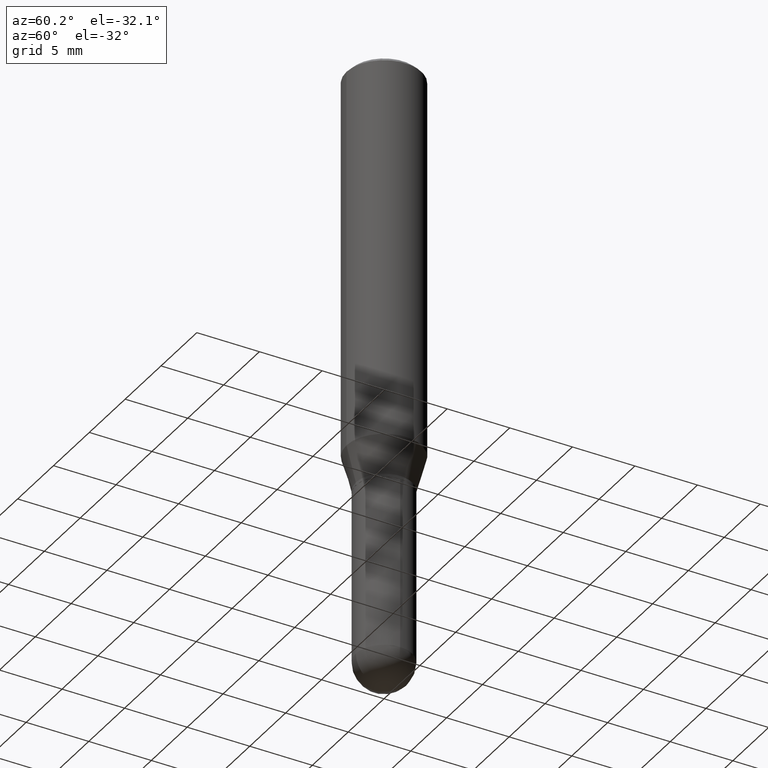
[diagram: clean part render]
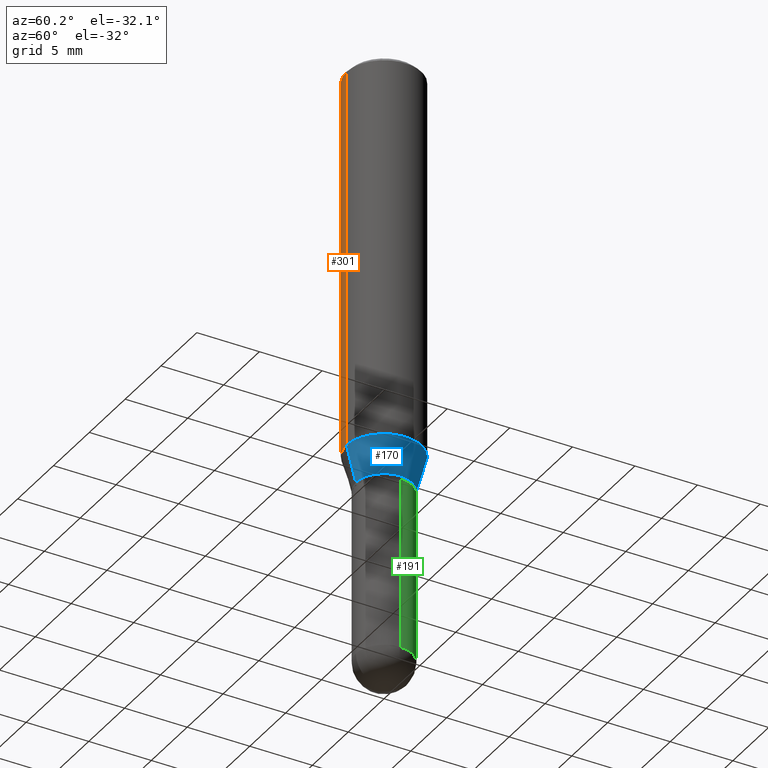
[diagram: same view with three faces highlighted in distinct colors, each labeled with its STEP entity id]
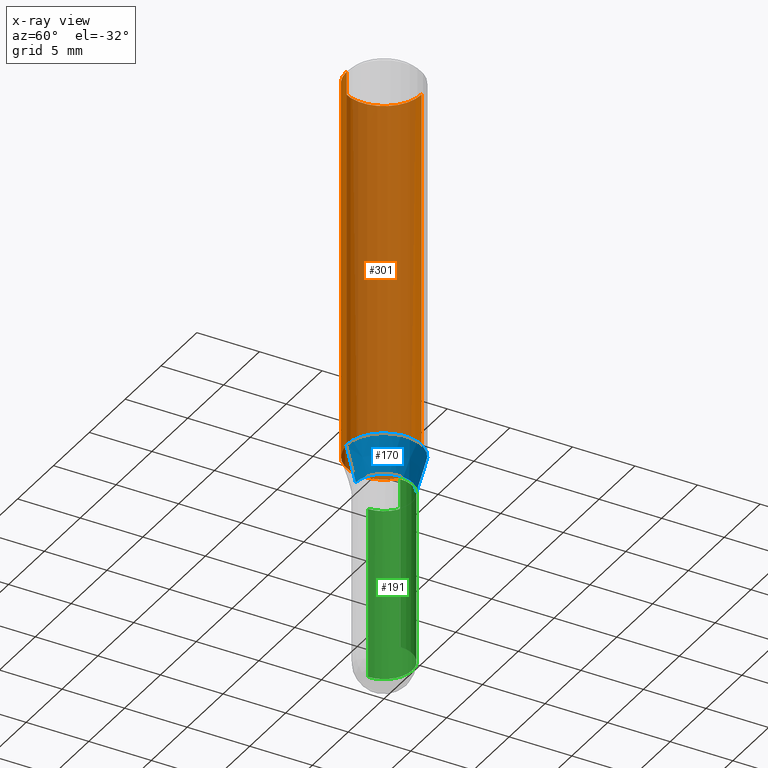
[diagram: x-ray of the same camera — body ghosted, the three highlighted faces saturated]
A machine part, auxiliary view with three faces highlighted in distinct colors.
The next image is the same camera in x-ray (body ghosted, the three faces saturated) — at least one of them is partly hidden behind the body in this view.
Their STEP definitions:

[orange] entity #301 — the highlighted cylindrical surface (partial cylindrical patch) has radius 2.9997 mm, axis along (-0, 0, 1).
#3 = CYLINDRICAL_SURFACE ( 'NONE', #398, 0.1180999999999999966 ) ;
#6 = ORIENTED_EDGE ( 'NONE', *, *, #57, .F. ) ;
#13 = CARTESIAN_POINT ( 'NONE',  ( 8.391509709326781971E-16, 0.1180999999999999966, -4.123265039032293037E-16 ) ) ;
#17 = CARTESIAN_POINT ( 'NONE',  ( 8.391509709327078780E-16, 0.1180999999999957362, -1.218504501176719046 ) ) ;
#35 = DIRECTION ( 'NONE',  ( -2.445571937709606698E-29, 3.491333648630222721E-15, 1.000000000000000000 ) ) ;
#36 = CARTESIAN_POINT ( 'NONE',  ( -8.246878922347182859E-16, -0.1181000000000042710, -1.218504501176718158 ) ) ;
#43 = DIRECTION ( 'NONE',  ( -2.445571937709606698E-29, 3.491333648630222721E-15, 1.000000000000000000 ) ) ;
#46 = CIRCLE ( 'NONE', #464, 0.1180999999999999966 ) ;
#57 = EDGE_CURVE ( 'NONE', #445, #452, #66, .T. ) ;
#66 = LINE ( 'NONE', #13, #79 ) ;
#77 = CARTESIAN_POINT ( 'NONE',  ( -8.246878922347475723E-16, -0.1181000000000000522, -0.01499999999999965944 ) ) ;
#79 = VECTOR ( 'NONE', #415, 39.37007874015748143 ) ;
#99 = ORIENTED_EDGE ( 'NONE', *, *, #153, .F. ) ;
#120 = VECTOR ( 'NONE', #433, 39.37007874015748143 ) ;
#141 = EDGE_LOOP ( 'NONE', ( #6, #285, #248, #99 ) ) ;
#153 = EDGE_CURVE ( 'NONE', #452, #292, #193, .T. ) ;
#155 = AXIS2_PLACEMENT_3D ( 'NONE', #421, #35, #310 ) ;
#160 = LINE ( 'NONE', #510, #120 ) ;
#166 = DIRECTION ( 'NONE',  ( -6.982962677686265922E-15, -1.000000000000000000, 3.491333648630222721E-15 ) ) ;
#193 = CIRCLE ( 'NONE', #155, 0.1180999999999999966 ) ;
#199 = DIRECTION ( 'NONE',  ( -2.445571937709606698E-29, 3.491333648630222721E-15, 1.000000000000000000 ) ) ;
#205 = DIRECTION ( 'NONE',  ( -6.982962677686265922E-15, -1.000000000000000000, 3.469747663417777397E-15 ) ) ;
#209 = CARTESIAN_POINT ( 'NONE',  ( 2.979940414050625783E-29, -4.254205765965662908E-15, -1.218504501176718602 ) ) ;
#234 = EDGE_CURVE ( 'NONE', #445, #364, #46, .T. ) ;
#248 = ORIENTED_EDGE ( 'NONE', *, *, #335, .T. ) ;
#285 = ORIENTED_EDGE ( 'NONE', *, *, #234, .T. ) ;
#292 = VERTEX_POINT ( 'NONE', #77 ) ;
#301 = ADVANCED_FACE ( 'NONE', ( #469 ), #3, .T. ) ;
#310 = DIRECTION ( 'NONE',  ( -6.982962677686265922E-15, -1.000000000000000000, 3.487819265831411744E-15 ) ) ;
#335 = EDGE_CURVE ( 'NONE', #364, #292, #160, .T. ) ;
#364 = VERTEX_POINT ( 'NONE', #36 ) ;
#392 = CARTESIAN_POINT ( 'NONE',  ( 0.000000000000000000, 0.000000000000000000, 0.000000000000000000 ) ) ;
#398 = AXIS2_PLACEMENT_3D ( 'NONE', #392, #43, #166 ) ;
#414 = CARTESIAN_POINT ( 'NONE',  ( 8.391509709327082724E-16, 0.1180999999999999411, -0.01500000000000048170 ) ) ;
#415 = DIRECTION ( 'NONE',  ( -2.445571937709606698E-29, 3.491333648630222721E-15, 1.000000000000000000 ) ) ;
#421 = CARTESIAN_POINT ( 'NONE',  ( 3.668357906564427545E-31, -5.237000472945358290E-17, -0.01500000000000007057 ) ) ;
#433 = DIRECTION ( 'NONE',  ( -2.445571937709606698E-29, 3.491333648630222721E-15, 1.000000000000000000 ) ) ;
#445 = VERTEX_POINT ( 'NONE', #17 ) ;
#452 = VERTEX_POINT ( 'NONE', #414 ) ;
#464 = AXIS2_PLACEMENT_3D ( 'NONE', #209, #199, #205 ) ;
#469 = FACE_OUTER_BOUND ( 'NONE', #141, .T. ) ;
#510 = CARTESIAN_POINT ( 'NONE',  ( -8.246878922347479668E-16, -0.1180999999999999966, 4.123265039032293037E-16 ) ) ;

[blue] entity #170 — the highlighted conical surface has half-angle 15 deg.
#7 = EDGE_CURVE ( 'NONE', #330, #364, #332, .T. ) ;
#10 = VECTOR ( 'NONE', #491, 39.37007874015748854 ) ;
#17 = CARTESIAN_POINT ( 'NONE',  ( 8.391509709327078780E-16, 0.1180999999999957362, -1.218504501176719046 ) ) ;
#29 = EDGE_CURVE ( 'NONE', #330, #218, #318, .T. ) ;
#36 = CARTESIAN_POINT ( 'NONE',  ( -8.246878922347182859E-16, -0.1181000000000042710, -1.218504501176718158 ) ) ;
#48 = LINE ( 'NONE', #315, #457 ) ;
#49 = EDGE_LOOP ( 'NONE', ( #184, #142, #252, #251 ) ) ;
#54 = AXIS2_PLACEMENT_3D ( 'NONE', #461, #306, #156 ) ;
#78 = DIRECTION ( 'NONE',  ( -6.982962677686265922E-15, -1.000000000000000000, 3.469747663417777397E-15 ) ) ;
#109 = FACE_OUTER_BOUND ( 'NONE', #49, .T. ) ;
#142 = ORIENTED_EDGE ( 'NONE', *, *, #411, .T. ) ;
#156 = DIRECTION ( 'NONE',  ( -6.982962677686264344E-15, -1.000000000000000000, 3.083349879982241481E-15 ) ) ;
#162 = CARTESIAN_POINT ( 'NONE',  ( 2.979940414050625783E-29, -4.254205765965662908E-15, -1.218504501176718602 ) ) ;
#168 = CARTESIAN_POINT ( 'NONE',  ( -6.186904932429700179E-16, -0.08860000000000455012, -1.328599999999999781 ) ) ;
#170 = ADVANCED_FACE ( 'NONE', ( #109 ), #369, .T. ) ;
#180 = DIRECTION ( 'NONE',  ( 1.839019923739605837E-15, 0.2588190451025257355, 0.9659258262890669799 ) ) ;
#184 = ORIENTED_EDGE ( 'NONE', *, *, #29, .T. ) ;
#198 = AXIS2_PLACEMENT_3D ( 'NONE', #419, #372, #446 ) ;
#218 = VERTEX_POINT ( 'NONE', #384 ) ;
#251 = ORIENTED_EDGE ( 'NONE', *, *, #7, .F. ) ;
#252 = ORIENTED_EDGE ( 'NONE', *, *, #286, .F. ) ;
#286 = EDGE_CURVE ( 'NONE', #364, #445, #428, .T. ) ;
#290 = CARTESIAN_POINT ( 'NONE',  ( -6.186904932429700179E-16, -0.08860000000000455012, -1.328599999999999781 ) ) ;
#306 = DIRECTION ( 'NONE',  ( -2.445571937709606698E-29, 3.491333648630222721E-15, 1.000000000000000000 ) ) ;
#315 = CARTESIAN_POINT ( 'NONE',  ( 6.295408638834805036E-16, 0.08859999999999526588, -1.328600000000000447 ) ) ;
#318 = CIRCLE ( 'NONE', #198, 0.08859999999999991493 ) ;
#330 = VERTEX_POINT ( 'NONE', #168 ) ;
#332 = LINE ( 'NONE', #290, #10 ) ;
#358 = DIRECTION ( 'NONE',  ( -2.445571937709606698E-29, 3.491333648630222721E-15, 1.000000000000000000 ) ) ;
#364 = VERTEX_POINT ( 'NONE', #36 ) ;
#369 = CONICAL_SURFACE ( 'NONE', #54, 0.08859999999999991493, 0.2617993877991510732 ) ;
#372 = DIRECTION ( 'NONE',  ( -2.445571937709606698E-29, 3.491333648630222721E-15, 1.000000000000000000 ) ) ;
#384 = CARTESIAN_POINT ( 'NONE',  ( 7.343459174080941908E-16, 0.08859999999999526588, -1.328600000000000447 ) ) ;
#411 = EDGE_CURVE ( 'NONE', #218, #445, #48, .T. ) ;
#419 = CARTESIAN_POINT ( 'NONE',  ( 3.249186876440983461E-29, -4.638585885570114762E-15, -1.328600000000000225 ) ) ;
#428 = CIRCLE ( 'NONE', #480, 0.1180999999999999966 ) ;
#445 = VERTEX_POINT ( 'NONE', #17 ) ;
#446 = DIRECTION ( 'NONE',  ( -6.982962677686264344E-15, -1.000000000000000000, 3.083349879982241481E-15 ) ) ;
#457 = VECTOR ( 'NONE', #180, 39.37007874015748143 ) ;
#461 = CARTESIAN_POINT ( 'NONE',  ( 3.249186876440983461E-29, -4.638585885570114762E-15, -1.328600000000000225 ) ) ;
#480 = AXIS2_PLACEMENT_3D ( 'NONE', #162, #358, #78 ) ;
#491 = DIRECTION ( 'NONE',  ( -1.807323732225335661E-15, -0.2588190451025189631, 0.9659258262890687563 ) ) ;

[green] entity #191 — the highlighted cylindrical surface (edge-blend (fillet) strip) has radius 2.2504 mm, axis along (-0, 0, 1).
#39 = CARTESIAN_POINT ( 'NONE',  ( 3.273504543959423913E-29, -4.673696920175434737E-15, -1.338600000000000012 ) ) ;
#76 = DIRECTION ( 'NONE',  ( -2.445468806185136597E-29, 3.491481338843145583E-15, 1.000000000000000000 ) ) ;
#80 = VERTEX_POINT ( 'NONE', #348 ) ;
#89 = CIRCLE ( 'NONE', #376, 0.08859999999999998432 ) ;
#91 = VERTEX_POINT ( 'NONE', #268 ) ;
#114 = DIRECTION ( 'NONE',  ( -2.445468806185136597E-29, 3.491481338843145583E-15, 1.000000000000000000 ) ) ;
#119 = VERTEX_POINT ( 'NONE', #197 ) ;
#124 = DIRECTION ( 'NONE',  ( -2.445468806185136597E-29, 3.491481338843145583E-15, 1.000000000000000000 ) ) ;
#125 = VERTEX_POINT ( 'NONE', #143 ) ;
#129 = AXIS2_PLACEMENT_3D ( 'NONE', #382, #76, #267 ) ;
#140 = DIRECTION ( 'NONE',  ( -2.445468806185136877E-29, 3.491481338843145188E-15, 1.000000000000000000 ) ) ;
#143 = CARTESIAN_POINT ( 'NONE',  ( -0.08859999999999999820, -4.989125480649882450E-15, -1.338600000000000012 ) ) ;
#167 = ORIENTED_EDGE ( 'NONE', *, *, #493, .F. ) ;
#169 = ORIENTED_EDGE ( 'NONE', *, *, #485, .T. ) ;
#191 = ADVANCED_FACE ( 'NONE', ( #230 ), #381, .T. ) ;
#197 = CARTESIAN_POINT ( 'NONE',  ( -0.08859999999999998432, -4.989125480649882450E-15, -1.879899999999999904 ) ) ;
#200 = DIRECTION ( 'NONE',  ( 1.000000000000000000, -6.982962677686269077E-15, 0.000000000000000000 ) ) ;
#204 = ORIENTED_EDGE ( 'NONE', *, *, #354, .F. ) ;
#212 = DIRECTION ( 'NONE',  ( -2.445468806185136877E-29, 3.491481338843145188E-15, 1.000000000000000000 ) ) ;
#214 = CARTESIAN_POINT ( 'NONE',  ( -0.08859999999999998432, 6.295408638834486533E-16, -4.358176489965845566E-30 ) ) ;
#222 = EDGE_CURVE ( 'NONE', #91, #119, #270, .T. ) ;
#224 = CIRCLE ( 'NONE', #356, 0.08859999999999999820 ) ;
#230 = FACE_OUTER_BOUND ( 'NONE', #406, .T. ) ;
#246 = DIRECTION ( 'NONE',  ( -2.445468806185136597E-29, 3.491481338843145583E-15, 1.000000000000000000 ) ) ;
#247 = EDGE_CURVE ( 'NONE', #80, #91, #89, .T. ) ;
#255 = VERTEX_POINT ( 'NONE', #438 ) ;
#267 = DIRECTION ( 'NONE',  ( 1.000000000000000000, -6.982962677686265922E-15, 4.876176775795935232E-29 ) ) ;
#268 = CARTESIAN_POINT ( 'NONE',  ( 6.186904932430488054E-16, 0.08859999999999342013, -1.879900000000000126 ) ) ;
#270 = CIRCLE ( 'NONE', #361, 0.08859999999999998432 ) ;
#279 = VECTOR ( 'NONE', #212, 39.37007874015748143 ) ;
#316 = DIRECTION ( 'NONE',  ( 1.000000000000000000, -6.982962677686270655E-15, 0.000000000000000000 ) ) ;
#321 = ORIENTED_EDGE ( 'NONE', *, *, #222, .T. ) ;
#338 = ORIENTED_EDGE ( 'NONE', *, *, #247, .T. ) ;
#348 = CARTESIAN_POINT ( 'NONE',  ( 0.08859999999999998432, -6.237356837776335042E-15, -1.879899999999999904 ) ) ;
#354 = EDGE_CURVE ( 'NONE', #255, #125, #224, .T. ) ;
#356 = AXIS2_PLACEMENT_3D ( 'NONE', #39, #246, #200 ) ;
#361 = AXIS2_PLACEMENT_3D ( 'NONE', #466, #114, #390 ) ;
#376 = AXIS2_PLACEMENT_3D ( 'NONE', #436, #124, #316 ) ;
#381 = CYLINDRICAL_SURFACE ( 'NONE', #129, 0.08859999999999998432 ) ;
#382 = CARTESIAN_POINT ( 'NONE',  ( 0.000000000000000000, 0.000000000000000000, 0.000000000000000000 ) ) ;
#390 = DIRECTION ( 'NONE',  ( 1.000000000000000000, -6.982962677686270655E-15, 0.000000000000000000 ) ) ;
#402 = CARTESIAN_POINT ( 'NONE',  ( 0.08859999999999998432, -6.186904932430030515E-16, 4.320292623355198064E-30 ) ) ;
#405 = LINE ( 'NONE', #402, #279 ) ;
#406 = EDGE_LOOP ( 'NONE', ( #321, #169, #204, #167, #338 ) ) ;
#436 = CARTESIAN_POINT ( 'NONE',  ( 4.597236808747438107E-29, -6.563635768891228653E-15, -1.879899999999999904 ) ) ;
#438 = CARTESIAN_POINT ( 'NONE',  ( 0.08859999999999999820, -5.292387413418437689E-15, -1.338600000000000012 ) ) ;
#451 = VECTOR ( 'NONE', #140, 39.37007874015748143 ) ;
#466 = CARTESIAN_POINT ( 'NONE',  ( 4.597236808747438107E-29, -6.563635768891228653E-15, -1.879899999999999904 ) ) ;
#485 = EDGE_CURVE ( 'NONE', #119, #125, #486, .T. ) ;
#486 = LINE ( 'NONE', #214, #451 ) ;
#493 = EDGE_CURVE ( 'NONE', #80, #255, #405, .T. ) ;